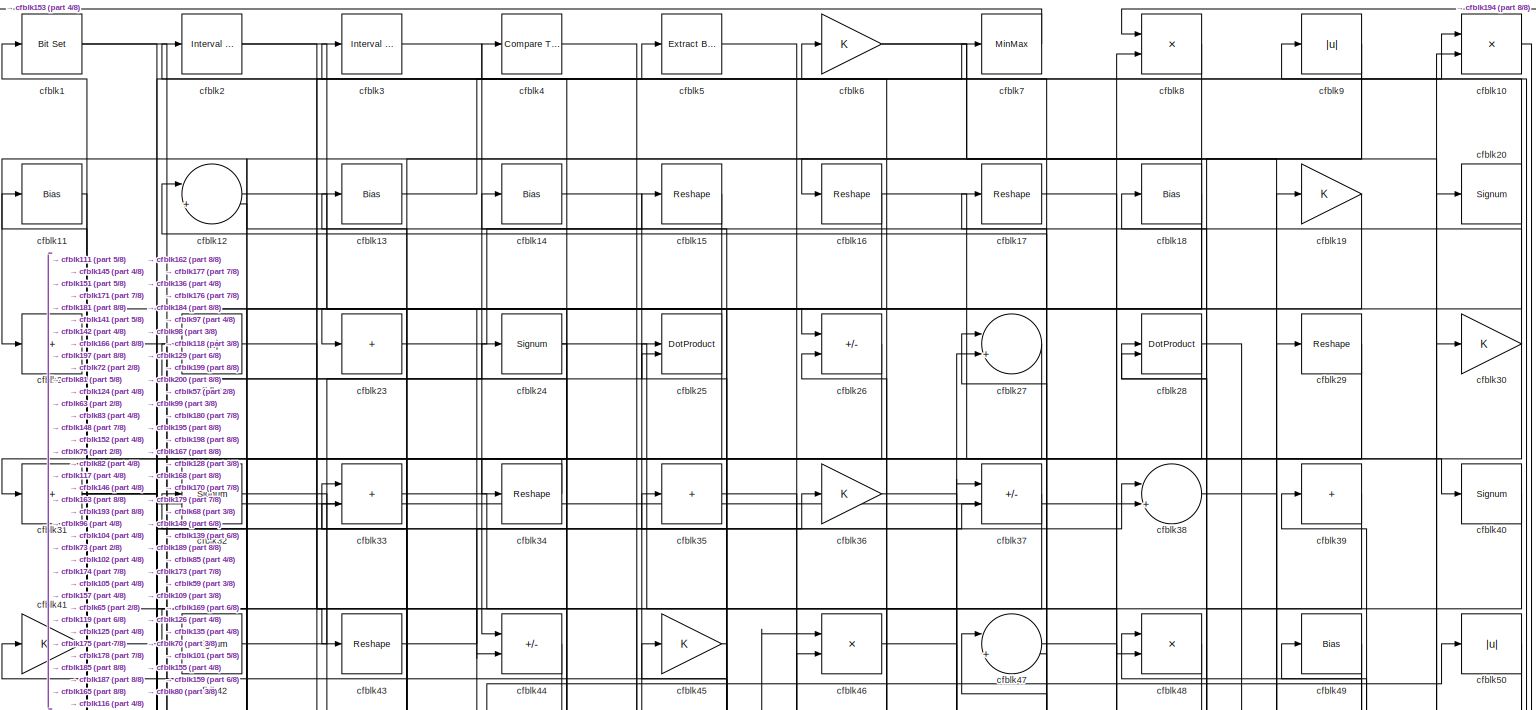
[diagram: root canvas - part 1/8, full width, top band]
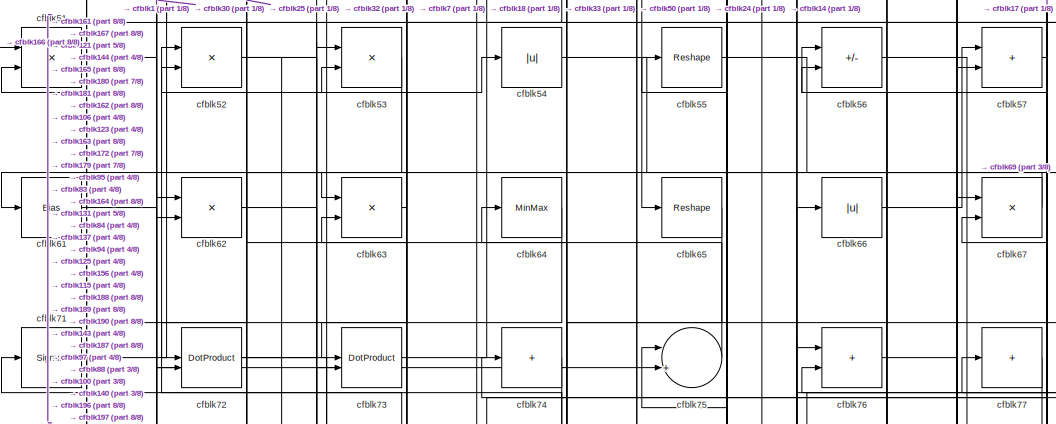
[diagram: root canvas - part 2/8, top center region]
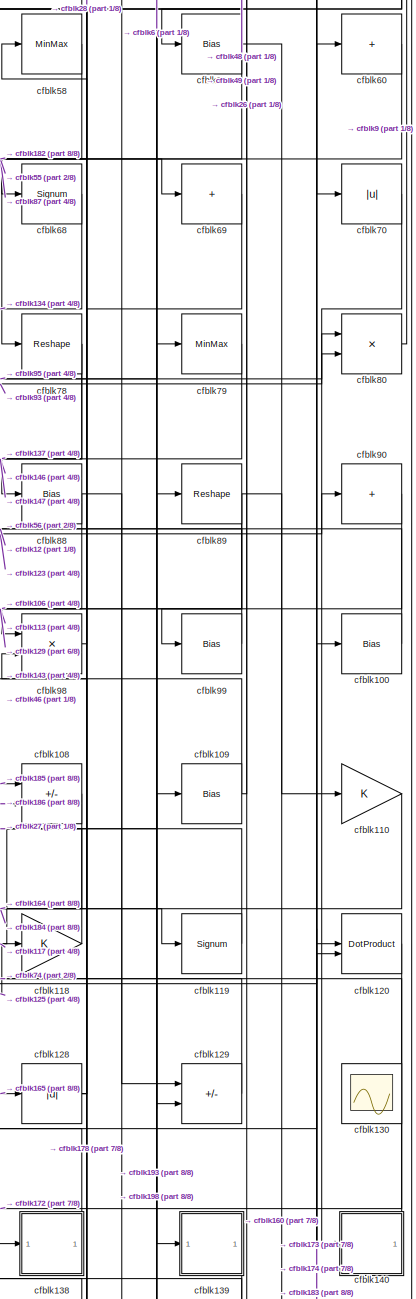
[diagram: root canvas - part 3/8, middle right region]
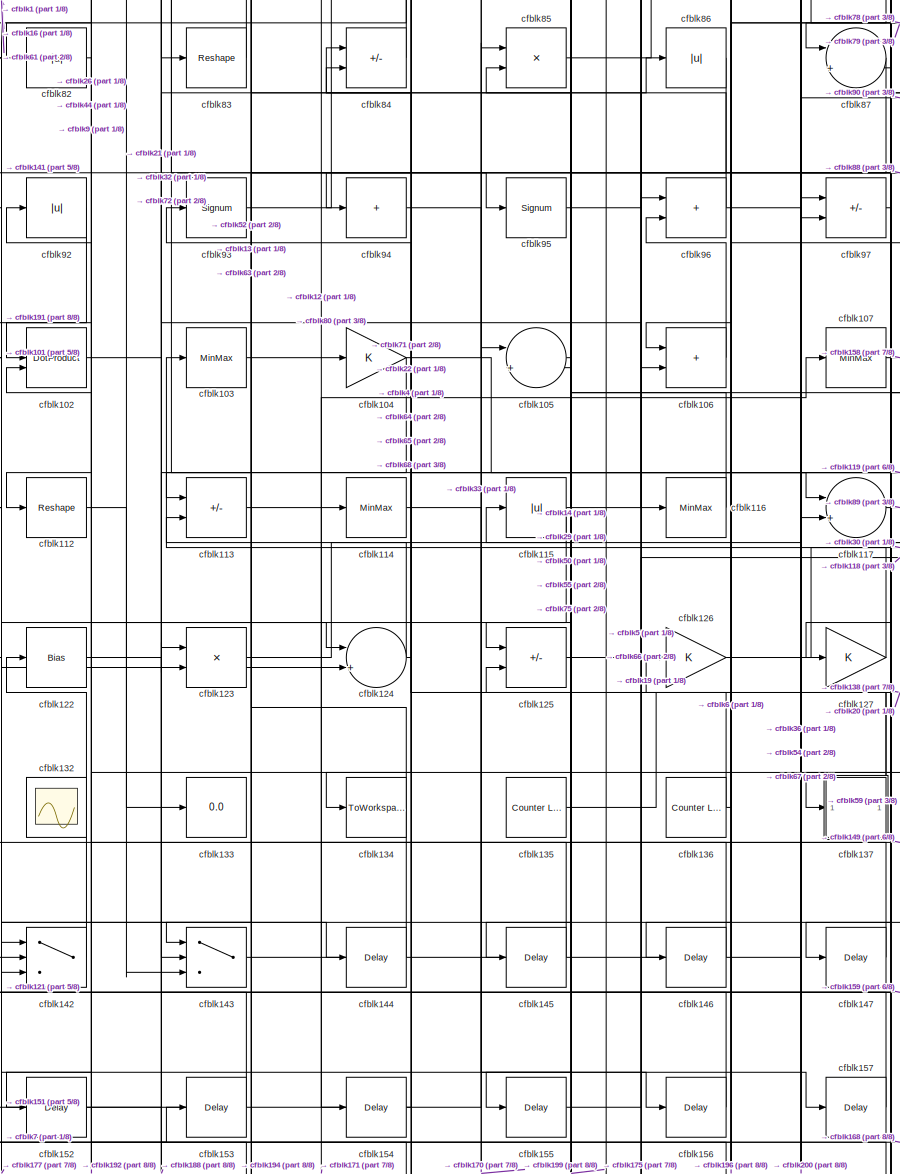
[diagram: root canvas - part 4/8, central region]
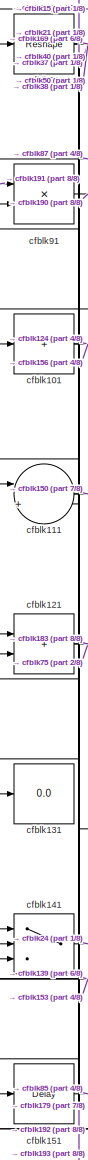
[diagram: root canvas - part 5/8, middle left region]
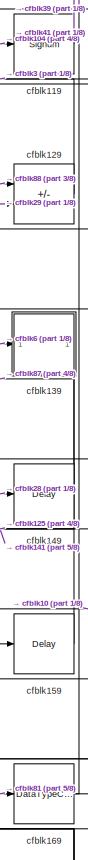
[diagram: root canvas - part 6/8, bottom right region]
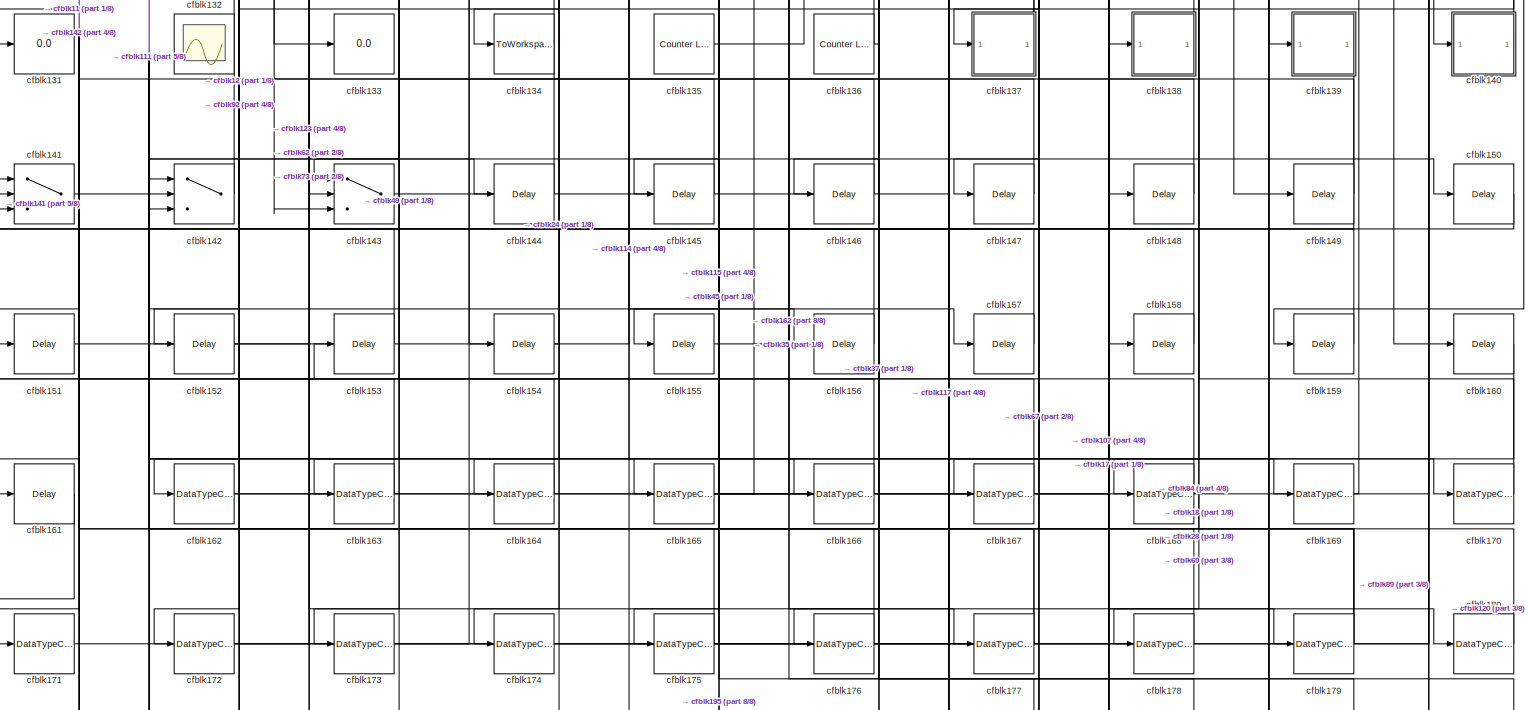
[diagram: root canvas - part 7/8, full width, bottom band]
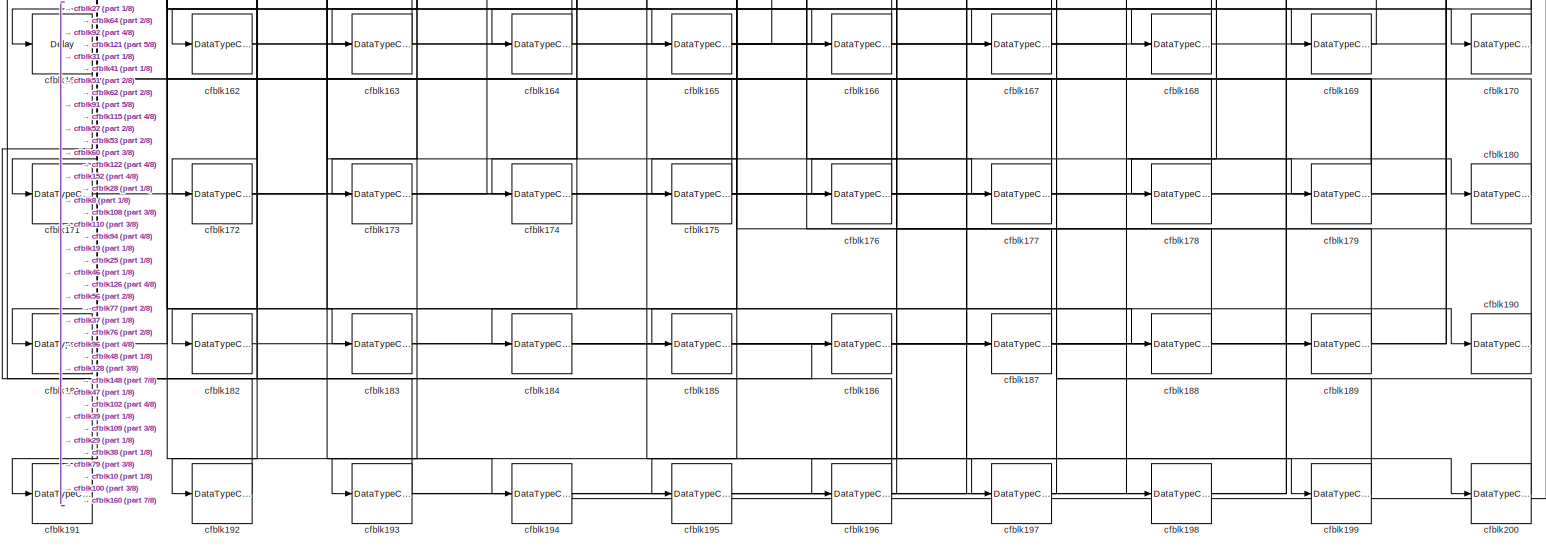
[diagram: root canvas - part 8/8, full width, bottom band]
MODEL slx_dd55fff5a9bf
KIND model
CONFIG AbsTol = auto
CONFIG EnableMultiTasking = off
CONFIG FixedStep = auto
CONFIG MaxStep = auto
CONFIG MinStep = auto
CONFIG RelTol = 1e-3
CONFIG SampleTimeConstraint = Unconstrained
CONFIG SolverName = VariableStepAuto
CONFIG StartTime = 0.0
CONFIG StopTime = 10.0
BLOCK [Reference] cfblk1  REF=simulink/Logic and Bit
Operations/Bit Set
  LibrarySourceBlock = hdlsllib/Logic and Bit\nOperations/Bit Set
  SourceBlock = simulink/Logic and Bit\nOperations/Bit Set
  SourceType = Bit Set
BLOCK [Product] cfblk10
  Inputs = */
  RndMeth = Zero
  SaturateOnIntegerOverflow = on
BLOCK [Bias] cfblk100
  Bias = 0.0
  SaturateOnIntegerOverflow = off
BLOCK [Sum] cfblk101
  IconShape = rectangular
  Inputs = +
BLOCK [DotProduct] cfblk102
  OutDataTypeStr = Inherit: Inherit via internal rule
BLOCK [MinMax] cfblk103
BLOCK [Gain] cfblk104
BLOCK [Sum] cfblk105
  Inputs = |++
BLOCK [Sum] cfblk106
  IconShape = rectangular
BLOCK [MinMax] cfblk107
BLOCK [Sum] cfblk108
  IconShape = rectangular
  Inputs = +-
BLOCK [Bias] cfblk109
  Bias = 0.0
  SaturateOnIntegerOverflow = off
BLOCK [Bias] cfblk11
  Bias = 0.0
  SaturateOnIntegerOverflow = off
BLOCK [Gain] cfblk110
BLOCK [Sum] cfblk111
  Inputs = |++
BLOCK [Reshape] cfblk112
BLOCK [Sum] cfblk113
  IconShape = rectangular
  Inputs = +-
BLOCK [MinMax] cfblk114
BLOCK [Abs] cfblk115
  SaturateOnIntegerOverflow = off
BLOCK [MinMax] cfblk116
BLOCK [Sum] cfblk117
  Inputs = |++
BLOCK [Gain] cfblk118
BLOCK [Signum] cfblk119
BLOCK [Sum] cfblk12
  Inputs = |++
BLOCK [DotProduct] cfblk120
  OutDataTypeStr = Inherit: Inherit via internal rule
BLOCK [Sum] cfblk121
  IconShape = rectangular
BLOCK [Bias] cfblk122
  Bias = 0.0
  SaturateOnIntegerOverflow = off
BLOCK [Product] cfblk123
  Inputs = */
  RndMeth = Zero
  SaturateOnIntegerOverflow = on
BLOCK [Sum] cfblk124
  Inputs = |++
BLOCK [Sum] cfblk125
  IconShape = rectangular
  Inputs = +-
BLOCK [Gain] cfblk126
BLOCK [Gain] cfblk127
BLOCK [Abs] cfblk128
  SaturateOnIntegerOverflow = off
BLOCK [Sum] cfblk129
  IconShape = rectangular
  Inputs = +-
BLOCK [Bias] cfblk13
  Bias = 0.0
  SaturateOnIntegerOverflow = off
BLOCK [Scope] cfblk130
  Floating = on
  NumInputPorts = 1
  ScopeSpecificationString = Simulink.scopes.TimeScopeBlockCfg('CurrentConfiguration', extmgr.ConfigurationSet(extmgr.Configuration('Core','General UI',true,'FigureColor',[0.156862745098039 0.156862745098039 0.156862745098039]),extmgr.Configuration('Core','Source UI',true),extmgr.Configuration('Sources','WiredSimulink',true,'DataLoggingVariableName','ScopeData1','DataLoggingSaveFormat','StructureWithTime','DataLoggingLimitDat...<+2713ch>
BLOCK [Display] cfblk131
  Decimation = 1
BLOCK [Scope] cfblk132
  Floating = on
  NumInputPorts = 1
  ScopeSpecificationString = Simulink.scopes.TimeScopeBlockCfg('CurrentConfiguration', extmgr.ConfigurationSet(extmgr.Configuration('Core','General UI',true,'FigureColor',[0.156862745098039 0.156862745098039 0.156862745098039]),extmgr.Configuration('Core','Source UI',true),extmgr.Configuration('Sources','WiredSimulink',true,'DataLoggingVariableName','ScopeData1','DataLoggingSaveFormat','StructureWithTime','DataLoggingLimitDat...<+2713ch>
BLOCK [Display] cfblk133
  Decimation = 1
BLOCK [ToWorkspace] cfblk134
  MaxDataPoints = inf
  SampleTime = -1
  SaveFormat = Timeseries
  VariableName = simout
BLOCK [Reference] cfblk135  REF=hdlsllib/Sources/Counter
Limited
  SourceBlock = hdlsllib/Sources/Counter\nLimited
  SourceType = Counter Limited
BLOCK [Reference] cfblk136  REF=hdlsllib/Sources/Counter
Limited
  SourceBlock = hdlsllib/Sources/Counter\nLimited
  SourceType = Counter Limited
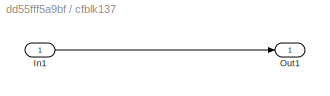
BLOCK [SubSystem] cfblk137
  LibrarySourceBlock = hdlsllib/Ports &\nSubsystems/Subsystem
BLOCK [Inport] cfblk137/In1
BLOCK [Outport] cfblk137/Out1
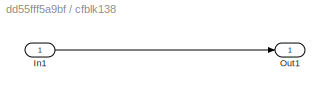
BLOCK [SubSystem] cfblk138
  LibrarySourceBlock = hdlsllib/Ports &\nSubsystems/Subsystem
BLOCK [Inport] cfblk138/In1
BLOCK [Outport] cfblk138/Out1
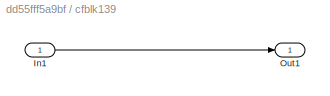
BLOCK [SubSystem] cfblk139
  LibrarySourceBlock = hdlsllib/Ports &\nSubsystems/Subsystem
BLOCK [Inport] cfblk139/In1
BLOCK [Outport] cfblk139/Out1
BLOCK [Bias] cfblk14
  Bias = 0.0
  SaturateOnIntegerOverflow = off
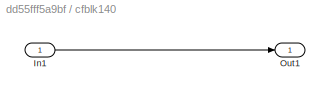
BLOCK [SubSystem] cfblk140
  LibrarySourceBlock = hdlsllib/Ports &\nSubsystems/Subsystem
BLOCK [Inport] cfblk140/In1
BLOCK [Outport] cfblk140/Out1
BLOCK [Switch] cfblk141
  InputSameDT = off
  SaturateOnIntegerOverflow = off
BLOCK [Switch] cfblk142
  InputSameDT = off
  SaturateOnIntegerOverflow = off
BLOCK [Switch] cfblk143
  InputSameDT = off
  SaturateOnIntegerOverflow = off
BLOCK [Delay] cfblk144
  InputPortMap = u0
  SampleTime = 1
BLOCK [Delay] cfblk145
  InputPortMap = u0
  SampleTime = 1
BLOCK [Delay] cfblk146
  InputPortMap = u0
  SampleTime = 1
BLOCK [Delay] cfblk147
  InputPortMap = u0
  SampleTime = 1
BLOCK [Delay] cfblk148
  InputPortMap = u0
  SampleTime = 1
BLOCK [Delay] cfblk149
  InputPortMap = u0
  SampleTime = 1
BLOCK [Reshape] cfblk15
BLOCK [Delay] cfblk150
  InputPortMap = u0
  SampleTime = 1
BLOCK [Delay] cfblk151
  InputPortMap = u0
  SampleTime = 1
BLOCK [Delay] cfblk152
  InputPortMap = u0
  SampleTime = 1
BLOCK [Delay] cfblk153
  InputPortMap = u0
  SampleTime = 1
BLOCK [Delay] cfblk154
  InputPortMap = u0
  SampleTime = 1
BLOCK [Delay] cfblk155
  InputPortMap = u0
  SampleTime = 1
BLOCK [Delay] cfblk156
  InputPortMap = u0
  SampleTime = 1
BLOCK [Delay] cfblk157
  InputPortMap = u0
  SampleTime = 1
BLOCK [Delay] cfblk158
  InputPortMap = u0
  SampleTime = 1
BLOCK [Delay] cfblk159
  InputPortMap = u0
  SampleTime = 1
BLOCK [Reshape] cfblk16
BLOCK [Delay] cfblk160
  InputPortMap = u0
  SampleTime = 1
BLOCK [Delay] cfblk161
  InputPortMap = u0
  SampleTime = 1
BLOCK [DataTypeConversion] cfblk162
  RndMeth = Floor
  SaturateOnIntegerOverflow = off
BLOCK [DataTypeConversion] cfblk163
  OutDataTypeStr = uint8
  RndMeth = Floor
  SaturateOnIntegerOverflow = off
BLOCK [DataTypeConversion] cfblk164
  OutDataTypeStr = uint8
  RndMeth = Floor
  SaturateOnIntegerOverflow = off
BLOCK [DataTypeConversion] cfblk165
  RndMeth = Floor
  SaturateOnIntegerOverflow = off
BLOCK [DataTypeConversion] cfblk166
  OutDataTypeStr = uint8
  RndMeth = Floor
  SaturateOnIntegerOverflow = off
BLOCK [DataTypeConversion] cfblk167
  OutDataTypeStr = uint8
  RndMeth = Floor
  SaturateOnIntegerOverflow = off
BLOCK [DataTypeConversion] cfblk168
  OutDataTypeStr = uint8
  RndMeth = Floor
  SaturateOnIntegerOverflow = off
BLOCK [DataTypeConversion] cfblk169
  OutDataTypeStr = uint8
  RndMeth = Floor
  SaturateOnIntegerOverflow = off
BLOCK [Reshape] cfblk17
BLOCK [DataTypeConversion] cfblk170
  OutDataTypeStr = uint8
  RndMeth = Floor
  SaturateOnIntegerOverflow = off
BLOCK [DataTypeConversion] cfblk171
  OutDataTypeStr = uint8
  RndMeth = Floor
  SaturateOnIntegerOverflow = off
BLOCK [DataTypeConversion] cfblk172
  RndMeth = Floor
  SaturateOnIntegerOverflow = off
BLOCK [DataTypeConversion] cfblk173
  OutDataTypeStr = uint8
  RndMeth = Floor
  SaturateOnIntegerOverflow = off
BLOCK [DataTypeConversion] cfblk174
  OutDataTypeStr = uint8
  RndMeth = Floor
  SaturateOnIntegerOverflow = off
BLOCK [DataTypeConversion] cfblk175
  RndMeth = Floor
  SaturateOnIntegerOverflow = off
BLOCK [DataTypeConversion] cfblk176
  OutDataTypeStr = uint8
  RndMeth = Floor
  SaturateOnIntegerOverflow = off
BLOCK [DataTypeConversion] cfblk177
  RndMeth = Floor
  SaturateOnIntegerOverflow = off
BLOCK [DataTypeConversion] cfblk178
  OutDataTypeStr = uint8
  RndMeth = Floor
  SaturateOnIntegerOverflow = off
BLOCK [DataTypeConversion] cfblk179
  RndMeth = Floor
  SaturateOnIntegerOverflow = off
BLOCK [Bias] cfblk18
  Bias = 0.0
  SaturateOnIntegerOverflow = off
BLOCK [DataTypeConversion] cfblk180
  OutDataTypeStr = uint8
  RndMeth = Floor
  SaturateOnIntegerOverflow = off
BLOCK [DataTypeConversion] cfblk181
  OutDataTypeStr = uint8
  RndMeth = Floor
  SaturateOnIntegerOverflow = off
BLOCK [DataTypeConversion] cfblk182
  OutDataTypeStr = uint8
  RndMeth = Floor
  SaturateOnIntegerOverflow = off
BLOCK [DataTypeConversion] cfblk183
  OutDataTypeStr = uint8
  RndMeth = Floor
  SaturateOnIntegerOverflow = off
BLOCK [DataTypeConversion] cfblk184
  RndMeth = Floor
  SaturateOnIntegerOverflow = off
BLOCK [DataTypeConversion] cfblk185
  OutDataTypeStr = uint8
  RndMeth = Floor
  SaturateOnIntegerOverflow = off
BLOCK [DataTypeConversion] cfblk186
  OutDataTypeStr = uint8
  RndMeth = Floor
  SaturateOnIntegerOverflow = off
BLOCK [DataTypeConversion] cfblk187
  OutDataTypeStr = uint8
  RndMeth = Floor
  SaturateOnIntegerOverflow = off
BLOCK [DataTypeConversion] cfblk188
  OutDataTypeStr = uint8
  RndMeth = Floor
  SaturateOnIntegerOverflow = off
BLOCK [DataTypeConversion] cfblk189
  OutDataTypeStr = uint8
  RndMeth = Floor
  SaturateOnIntegerOverflow = off
BLOCK [Gain] cfblk19
BLOCK [DataTypeConversion] cfblk190
  OutDataTypeStr = uint8
  RndMeth = Floor
  SaturateOnIntegerOverflow = off
BLOCK [DataTypeConversion] cfblk191
  OutDataTypeStr = uint8
  RndMeth = Floor
  SaturateOnIntegerOverflow = off
BLOCK [DataTypeConversion] cfblk192
  OutDataTypeStr = uint8
  RndMeth = Floor
  SaturateOnIntegerOverflow = off
BLOCK [DataTypeConversion] cfblk193
  RndMeth = Floor
  SaturateOnIntegerOverflow = off
BLOCK [DataTypeConversion] cfblk194
  OutDataTypeStr = uint8
  RndMeth = Floor
  SaturateOnIntegerOverflow = off
BLOCK [DataTypeConversion] cfblk195
  OutDataTypeStr = uint8
  RndMeth = Floor
  SaturateOnIntegerOverflow = off
BLOCK [DataTypeConversion] cfblk196
  RndMeth = Floor
  SaturateOnIntegerOverflow = off
BLOCK [DataTypeConversion] cfblk197
  OutDataTypeStr = uint8
  RndMeth = Floor
  SaturateOnIntegerOverflow = off
BLOCK [DataTypeConversion] cfblk198
  OutDataTypeStr = uint8
  RndMeth = Floor
  SaturateOnIntegerOverflow = off
BLOCK [DataTypeConversion] cfblk199
  OutDataTypeStr = uint8
  RndMeth = Floor
  SaturateOnIntegerOverflow = off
BLOCK [Reference] cfblk2  REF=hdlsllib/Logic and Bit
Operations/Interval Test
  SourceBlock = hdlsllib/Logic and Bit\nOperations/Interval Test
  SourceType = Interval Test
BLOCK [Signum] cfblk20
BLOCK [DataTypeConversion] cfblk200
  OutDataTypeStr = uint8
  RndMeth = Floor
  SaturateOnIntegerOverflow = off
BLOCK [Sum] cfblk21
  IconShape = rectangular
  Inputs = +
BLOCK [Abs] cfblk22
  SaturateOnIntegerOverflow = off
BLOCK [Sum] cfblk23
  IconShape = rectangular
  Inputs = +
BLOCK [Signum] cfblk24
BLOCK [DotProduct] cfblk25
  OutDataTypeStr = Inherit: Inherit via internal rule
BLOCK [Sum] cfblk26
  IconShape = rectangular
  Inputs = +-
BLOCK [Sum] cfblk27
  Inputs = |++
BLOCK [DotProduct] cfblk28
  OutDataTypeStr = Inherit: Inherit via internal rule
BLOCK [Reshape] cfblk29
BLOCK [Reference] cfblk3  REF=hdlsllib/Logic and Bit
Operations/Interval Test
  SourceBlock = hdlsllib/Logic and Bit\nOperations/Interval Test
  SourceType = Interval Test
BLOCK [Gain] cfblk30
BLOCK [Sum] cfblk31
  IconShape = rectangular
  Inputs = +
BLOCK [Signum] cfblk32
BLOCK [Sum] cfblk33
  IconShape = rectangular
BLOCK [Reshape] cfblk34
BLOCK [Sum] cfblk35
  IconShape = rectangular
  Inputs = +
BLOCK [Gain] cfblk36
BLOCK [Sum] cfblk37
  IconShape = rectangular
  Inputs = +-
BLOCK [Sum] cfblk38
  Inputs = |++
BLOCK [Sum] cfblk39
  IconShape = rectangular
  Inputs = +
BLOCK [Reference] cfblk4  REF=hdlsllib/Logic and Bit
Operations/Compare
To Constant
  SourceBlock = hdlsllib/Logic and Bit\nOperations/Compare\nTo Constant
  SourceType = Compare To Constant
BLOCK [Signum] cfblk40
BLOCK [Gain] cfblk41
BLOCK [Signum] cfblk42
BLOCK [Reshape] cfblk43
BLOCK [Sum] cfblk44
  IconShape = rectangular
  Inputs = +-
BLOCK [Gain] cfblk45
BLOCK [Product] cfblk46
  Inputs = */
  RndMeth = Zero
  SaturateOnIntegerOverflow = on
BLOCK [Sum] cfblk47
  Inputs = |++
BLOCK [Product] cfblk48
  Inputs = */
  RndMeth = Zero
  SaturateOnIntegerOverflow = on
BLOCK [Bias] cfblk49
  Bias = 0.0
  SaturateOnIntegerOverflow = off
BLOCK [Reference] cfblk5  REF=simulink/Logic and Bit
Operations/Extract Bits
  LibrarySourceBlock = hdlsllib/Logic and Bit\nOperations/Extract Bits
  SourceBlock = simulink/Logic and Bit\nOperations/Extract Bits
  SourceType = Extract Bits
BLOCK [Abs] cfblk50
  SaturateOnIntegerOverflow = off
BLOCK [Product] cfblk51
  Inputs = */
  RndMeth = Zero
  SaturateOnIntegerOverflow = on
BLOCK [Product] cfblk52
  Inputs = */
  RndMeth = Zero
  SaturateOnIntegerOverflow = on
BLOCK [Product] cfblk53
  Inputs = */
  RndMeth = Zero
  SaturateOnIntegerOverflow = on
BLOCK [Abs] cfblk54
  SaturateOnIntegerOverflow = off
BLOCK [Reshape] cfblk55
BLOCK [Sum] cfblk56
  IconShape = rectangular
  Inputs = +-
BLOCK [Sum] cfblk57
  IconShape = rectangular
BLOCK [MinMax] cfblk58
BLOCK [Bias] cfblk59
  Bias = 0.0
  SaturateOnIntegerOverflow = off
BLOCK [Gain] cfblk6
BLOCK [Sum] cfblk60
  IconShape = rectangular
  Inputs = +
BLOCK [Bias] cfblk61
  Bias = 0.0
  SaturateOnIntegerOverflow = off
BLOCK [Product] cfblk62
  Inputs = */
  RndMeth = Zero
  SaturateOnIntegerOverflow = on
BLOCK [Product] cfblk63
  Inputs = */
  RndMeth = Zero
  SaturateOnIntegerOverflow = on
BLOCK [MinMax] cfblk64
BLOCK [Reshape] cfblk65
BLOCK [Abs] cfblk66
  SaturateOnIntegerOverflow = off
BLOCK [Product] cfblk67
  Inputs = */
  RndMeth = Zero
  SaturateOnIntegerOverflow = on
BLOCK [Signum] cfblk68
BLOCK [Sum] cfblk69
  IconShape = rectangular
  Inputs = +
BLOCK [MinMax] cfblk7
BLOCK [Abs] cfblk70
  SaturateOnIntegerOverflow = off
BLOCK [Signum] cfblk71
BLOCK [DotProduct] cfblk72
  OutDataTypeStr = Inherit: Inherit via internal rule
BLOCK [DotProduct] cfblk73
  OutDataTypeStr = Inherit: Inherit via internal rule
BLOCK [Sum] cfblk74
  IconShape = rectangular
  Inputs = +
BLOCK [Sum] cfblk75
  Inputs = |++
BLOCK [Sum] cfblk76
  IconShape = rectangular
BLOCK [Sum] cfblk77
  IconShape = rectangular
  Inputs = +
BLOCK [Reshape] cfblk78
BLOCK [MinMax] cfblk79
BLOCK [Product] cfblk8
  Inputs = */
  RndMeth = Zero
  SaturateOnIntegerOverflow = on
BLOCK [Product] cfblk80
  Inputs = */
  RndMeth = Zero
  SaturateOnIntegerOverflow = on
BLOCK [Reshape] cfblk81
BLOCK [Abs] cfblk82
  SaturateOnIntegerOverflow = off
BLOCK [Reshape] cfblk83
BLOCK [Sum] cfblk84
  IconShape = rectangular
  Inputs = +-
BLOCK [Product] cfblk85
  Inputs = */
  RndMeth = Zero
  SaturateOnIntegerOverflow = on
BLOCK [Abs] cfblk86
  SaturateOnIntegerOverflow = off
BLOCK [Sum] cfblk87
  Inputs = |++
BLOCK [Bias] cfblk88
  Bias = 0.0
  SaturateOnIntegerOverflow = off
BLOCK [Reshape] cfblk89
BLOCK [Abs] cfblk9
  SaturateOnIntegerOverflow = off
BLOCK [Sum] cfblk90
  IconShape = rectangular
  Inputs = +
BLOCK [Product] cfblk91
  Inputs = */
  RndMeth = Zero
  SaturateOnIntegerOverflow = on
BLOCK [Abs] cfblk92
  SaturateOnIntegerOverflow = off
BLOCK [Signum] cfblk93
BLOCK [Sum] cfblk94
  IconShape = rectangular
  Inputs = +
BLOCK [Signum] cfblk95
BLOCK [Sum] cfblk96
  IconShape = rectangular
BLOCK [Sum] cfblk97
  IconShape = rectangular
  Inputs = +-
BLOCK [Product] cfblk98
  Inputs = */
  RndMeth = Zero
  SaturateOnIntegerOverflow = on
BLOCK [Bias] cfblk99
  Bias = 0.0
  SaturateOnIntegerOverflow = off
LINE cfblk100:1 -> cfblk56:1
NET cfblk101:1 -> cfblk124:1, cfblk156:1
LINE cfblk102:1 -> cfblk86:1
LINE cfblk103:1 -> cfblk154:1
NET cfblk104:1 -> cfblk119:1, cfblk143:2
LINE cfblk105:1 -> cfblk85:2
LINE cfblk106:1 -> cfblk96:2
LINE cfblk107:1 -> cfblk158:1
LINE cfblk108:1 -> cfblk184:1
NET cfblk109:1 -> cfblk26:2, cfblk49:1
LINE cfblk10:1 -> cfblk159:1
LINE cfblk110:1 -> cfblk164:1
NET cfblk111:1 -> cfblk150:1, cfblk38:2
LINE cfblk112:1 -> cfblk133:1
LINE cfblk113:1 -> cfblk107:1
LINE cfblk114:1 -> cfblk170:1
NET cfblk115:1 -> cfblk192:1, cfblk66:1
LINE cfblk116:1 -> cfblk14:1
LINE cfblk117:1 -> cfblk89:1
LINE cfblk118:1 -> cfblk27:1
LINE cfblk119:1 -> cfblk41:1
LINE cfblk11:1 -> cfblk171:1
LINE cfblk120:1 -> cfblk172:1
NET cfblk121:1 -> cfblk183:1, cfblk75:2
LINE cfblk122:1 -> cfblk194:1
LINE cfblk123:1 -> cfblk90:1
NET cfblk124:1 -> cfblk113:2, cfblk4:1
NET cfblk125:1 -> cfblk118:1, cfblk55:1
LINE cfblk126:1 -> cfblk30:1
LINE cfblk127:1 -> cfblk103:1
NET cfblk128:1 -> cfblk28:1, cfblk98:2
LINE cfblk129:1 -> cfblk3:1
LINE cfblk12:1 -> cfblk104:1
LINE cfblk135:1 -> cfblk20:1
NET cfblk136:1 -> cfblk22:1, cfblk6:1
LINE cfblk137/In1:1 -> cfblk137/Out1:1
NET cfblk137:1 -> cfblk64:1, cfblk93:1
LINE cfblk138/In1:1 -> cfblk138/Out1:1
LINE cfblk138:1 -> cfblk84:1
LINE cfblk139/In1:1 -> cfblk139/Out1:1
LINE cfblk139:1 -> cfblk141:2
LINE cfblk13:1 -> cfblk5:1
LINE cfblk140/In1:1 -> cfblk140/Out1:1
LINE cfblk140:1 -> cfblk74:1
LINE cfblk141:1 -> cfblk24:1
LINE cfblk142:1 -> cfblk122:1
LINE cfblk143:1 -> cfblk67:1
LINE cfblk144:1 -> cfblk63:2
LINE cfblk145:1 -> cfblk1:1
LINE cfblk146:1 -> cfblk33:2
LINE cfblk147:1 -> cfblk105:2
LINE cfblk148:1 -> cfblk12:2
LINE cfblk149:1 -> cfblk87:2
LINE cfblk14:1 -> cfblk65:1
LINE cfblk150:1 -> cfblk141:3
LINE cfblk151:1 -> cfblk85:1
LINE cfblk152:1 -> cfblk188:1
LINE cfblk153:1 -> cfblk121:1
LINE cfblk154:1 -> cfblk84:2
LINE cfblk155:1 -> cfblk96:1
LINE cfblk156:1 -> cfblk75:1
LINE cfblk157:1 -> cfblk142:1
LINE cfblk158:1 -> cfblk123:1
LINE cfblk159:1 -> cfblk125:2
LINE cfblk15:1 -> cfblk151:1
LINE cfblk160:1 -> cfblk195:1
LINE cfblk161:1 -> cfblk186:1
NET cfblk162:1 -> cfblk148:1, cfblk46:2
LINE cfblk163:1 -> cfblk53:1
LINE cfblk164:1 -> cfblk53:2
NET cfblk165:1 -> cfblk10:2, cfblk128:1, cfblk46:1
LINE cfblk166:1 -> cfblk51:1
LINE cfblk167:1 -> cfblk51:2
LINE cfblk168:1 -> cfblk102:2
LINE cfblk169:1 -> cfblk39:1
NET cfblk16:1 -> cfblk142:3, cfblk40:1
LINE cfblk170:1 -> cfblk18:1
LINE cfblk171:1 -> cfblk114:1
NET cfblk172:1 -> cfblk138:1, cfblk73:2
LINE cfblk173:1 -> cfblk120:1
LINE cfblk174:1 -> cfblk120:2
NET cfblk175:1 -> cfblk115:1, cfblk117:2, cfblk92:1
LINE cfblk176:1 -> cfblk45:1
NET cfblk177:1 -> cfblk11:1, cfblk142:2
LINE cfblk178:1 -> cfblk35:1
NET cfblk179:1 -> cfblk111:2, cfblk28:2, cfblk67:2
LINE cfblk17:1 -> cfblk180:1
LINE cfblk180:1 -> cfblk62:1
LINE cfblk181:1 -> cfblk62:2
LINE cfblk182:1 -> cfblk100:1
LINE cfblk183:1 -> cfblk60:1
NET cfblk184:1 -> cfblk29:1, cfblk37:1
LINE cfblk185:1 -> cfblk108:1
LINE cfblk186:1 -> cfblk108:2
LINE cfblk187:1 -> cfblk25:2
LINE cfblk188:1 -> cfblk76:1
LINE cfblk189:1 -> cfblk76:2
NET cfblk18:1 -> cfblk16:1, cfblk42:1, cfblk73:1
LINE cfblk190:1 -> cfblk56:2
LINE cfblk191:1 -> cfblk91:1
LINE cfblk192:1 -> cfblk91:2
NET cfblk193:1 -> cfblk121:2, cfblk27:2, cfblk79:1
LINE cfblk194:1 -> cfblk8:1
LINE cfblk195:1 -> cfblk8:2
NET cfblk196:1 -> cfblk126:1, cfblk52:2
LINE cfblk197:1 -> cfblk77:1
LINE cfblk198:1 -> cfblk109:1
LINE cfblk199:1 -> cfblk47:1
LINE cfblk19:1 -> cfblk185:1
NET cfblk1:1 -> cfblk124:2, cfblk63:1
LINE cfblk200:1 -> cfblk47:2
NET cfblk20:1 -> cfblk2:1, cfblk34:1
NET cfblk21:1 -> cfblk111:1, cfblk83:1
LINE cfblk22:1 -> cfblk44:2
LINE cfblk23:1 -> cfblk15:1
NET cfblk24:1 -> cfblk174:1, cfblk57:2
NET cfblk25:1 -> cfblk23:1, cfblk72:1
LINE cfblk26:1 -> cfblk82:1
LINE cfblk27:1 -> cfblk181:1
NET cfblk28:1 -> cfblk149:1, cfblk163:1
NET cfblk29:1 -> cfblk125:1, cfblk129:2
NET cfblk2:1 -> cfblk26:1, cfblk48:2
NET cfblk30:1 -> cfblk21:1, cfblk72:2
NET cfblk31:1 -> cfblk10:1, cfblk166:1, cfblk43:1
LINE cfblk32:1 -> cfblk117:1
LINE cfblk33:1 -> cfblk105:1
LINE cfblk34:1 -> cfblk31:1
LINE cfblk35:1 -> cfblk177:1
LINE cfblk36:1 -> cfblk97:1
LINE cfblk37:1 -> cfblk176:1
LINE cfblk38:1 -> cfblk189:1
LINE cfblk39:1 -> cfblk168:1
LINE cfblk3:1 -> cfblk44:1
LINE cfblk40:1 -> cfblk81:1
LINE cfblk41:1 -> cfblk197:1
LINE cfblk42:1 -> cfblk25:1
LINE cfblk43:1 -> cfblk36:1
LINE cfblk44:1 -> cfblk102:1
LINE cfblk45:1 -> cfblk175:1
LINE cfblk46:1 -> cfblk98:1
LINE cfblk47:1 -> cfblk198:1
LINE cfblk48:1 -> cfblk167:1
NET cfblk49:1 -> cfblk173:1, cfblk59:1
LINE cfblk4:1 -> cfblk157:1
NET cfblk50:1 -> cfblk101:1, cfblk155:1
LINE cfblk51:1 -> cfblk165:1
NET cfblk52:1 -> cfblk106:2, cfblk123:2, cfblk143:3
LINE cfblk53:1 -> cfblk162:1
LINE cfblk54:1 -> cfblk97:2
LINE cfblk55:1 -> cfblk69:1
LINE cfblk56:1 -> cfblk88:1
LINE cfblk57:1 -> cfblk17:1
LINE cfblk58:1 -> cfblk78:1
NET cfblk59:1 -> cfblk110:1, cfblk48:1, cfblk87:1
LINE cfblk5:1 -> cfblk116:1
LINE cfblk60:1 -> cfblk182:1
LINE cfblk61:1 -> cfblk144:1
LINE cfblk62:1 -> cfblk179:1
LINE cfblk63:1 -> cfblk33:1
LINE cfblk64:1 -> cfblk161:1
LINE cfblk65:1 -> cfblk94:1
LINE cfblk66:1 -> cfblk57:1
LINE cfblk67:1 -> cfblk61:1
LINE cfblk68:1 -> cfblk134:1
LINE cfblk69:1 -> cfblk178:1
NET cfblk6:1 -> cfblk139:1, cfblk70:1
LINE cfblk70:1 -> cfblk140:1
LINE cfblk71:1 -> cfblk54:1
NET cfblk72:1 -> cfblk7:1, cfblk95:1
LINE cfblk73:1 -> cfblk50:1
LINE cfblk74:1 -> cfblk131:1
LINE cfblk75:1 -> cfblk32:1
LINE cfblk76:1 -> cfblk187:1
LINE cfblk77:1 -> cfblk196:1
NET cfblk78:1 -> cfblk146:1, cfblk147:1
LINE cfblk79:1 -> cfblk137:1
LINE cfblk7:1 -> cfblk153:1
LINE cfblk80:1 -> cfblk9:1
NET cfblk81:1 -> cfblk169:1, cfblk37:2, cfblk38:1
LINE cfblk82:1 -> cfblk112:1
LINE cfblk83:1 -> cfblk52:1
LINE cfblk84:1 -> cfblk71:1
LINE cfblk85:1 -> cfblk19:1
LINE cfblk86:1 -> cfblk145:1
LINE cfblk87:1 -> cfblk141:1
NET cfblk88:1 -> cfblk129:1, cfblk143:1
NET cfblk89:1 -> cfblk113:1, cfblk160:1, cfblk99:1
LINE cfblk8:1 -> cfblk193:1
LINE cfblk90:1 -> cfblk106:1
LINE cfblk91:1 -> cfblk190:1
LINE cfblk92:1 -> cfblk191:1
LINE cfblk93:1 -> cfblk80:1
LINE cfblk94:1 -> cfblk199:1
LINE cfblk95:1 -> cfblk80:2
NET cfblk96:1 -> cfblk13:1, cfblk200:1
LINE cfblk97:1 -> cfblk127:1
LINE cfblk98:1 -> cfblk58:1
LINE cfblk99:1 -> cfblk12:1
NET cfblk9:1 -> cfblk152:1, cfblk68:1
note: NET lines group one-source signal fan-out (src -> all destinations, sorted); 1:1 wires keep LINE
